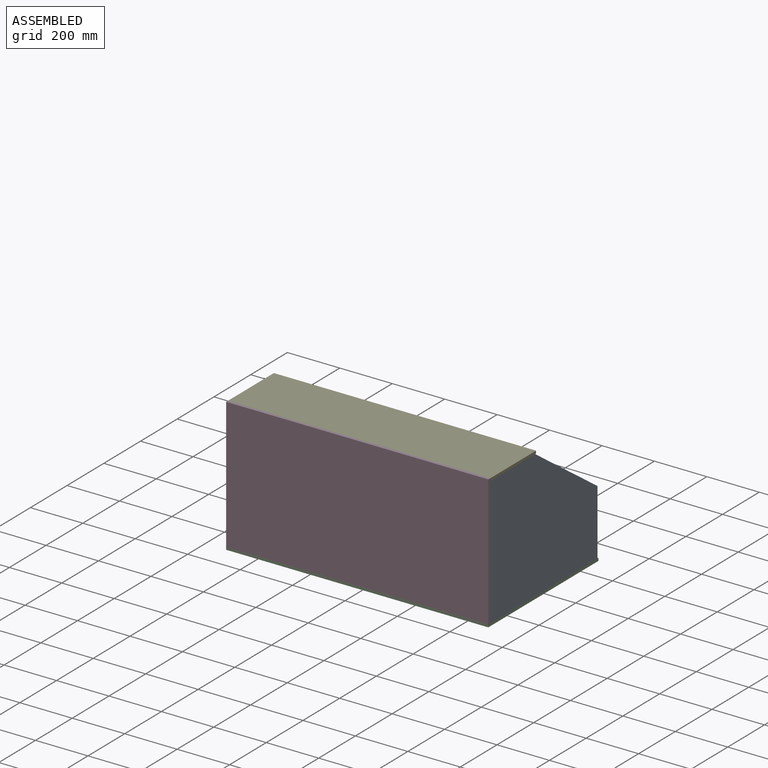
[diagram: assembled view]
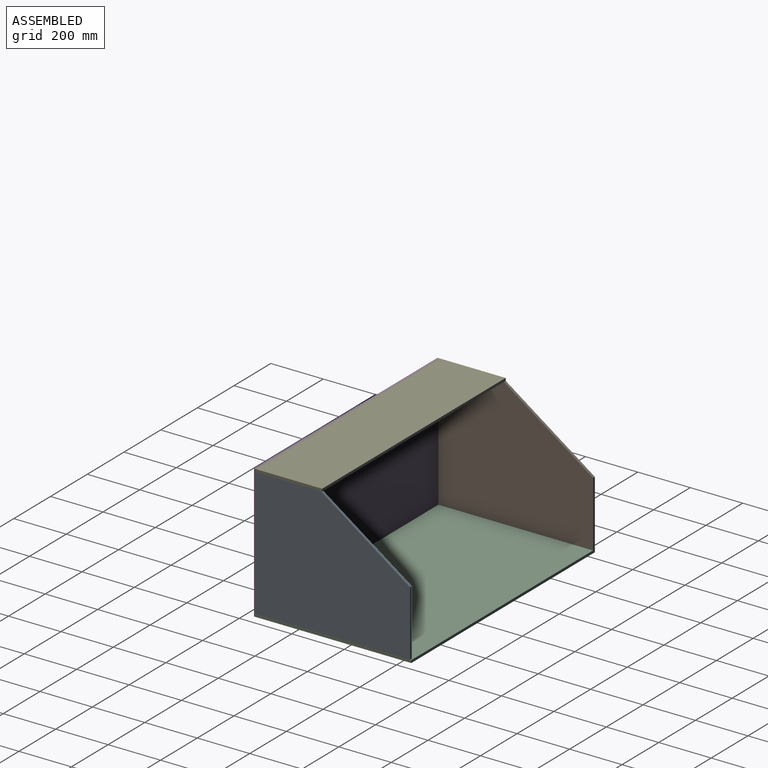
[diagram: assembled view, second angle]
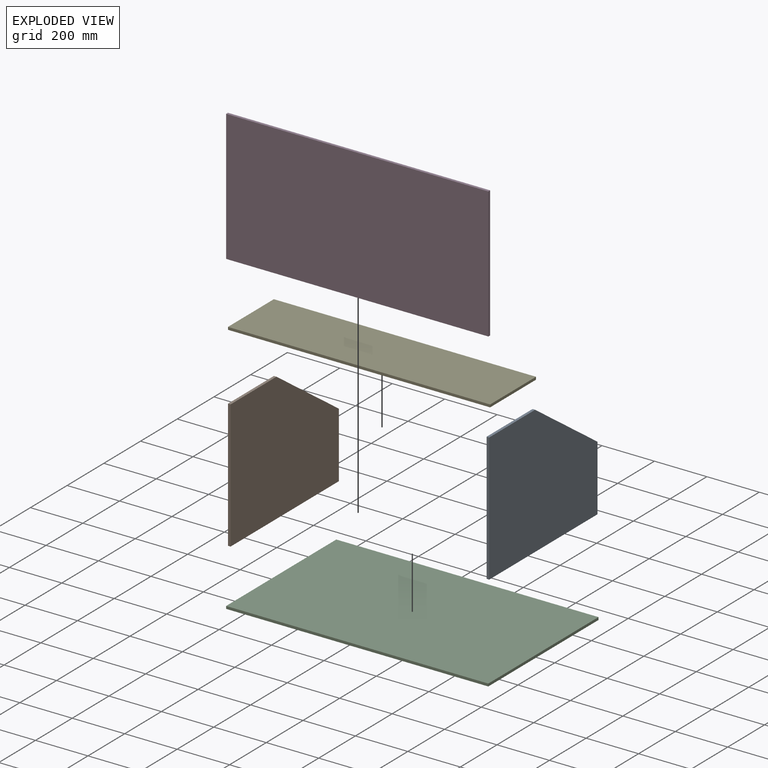
[diagram: exploded view]
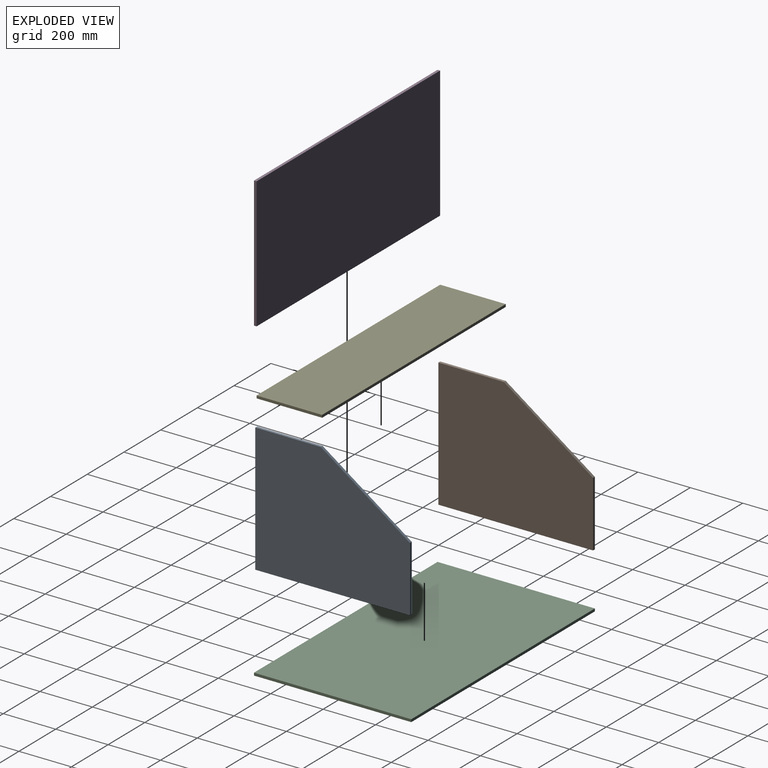
[diagram: exploded view, second angle]
ASSEMBLY  parts=5 mates=4
PART A: 7 faces, bbox 10x590x490 mm
  f0: plane 250x10mm, normal (0,0,1), area 2500mm2, adj f1,f4,f5,f6
  f1: plane 490x10mm, normal (0,-1,0), area 4900mm2, adj f0,f2,f5,f6
  f2: plane 590x10mm, normal (0,0,-1), area 5900mm2, adj f1,f3,f5,f6
  f3: plane 250x10mm, normal (0,1,0), area 2500mm2, adj f2,f4,f5,f6
  f4: plane 340x240mm, normal (0,0.58,0.82), area 4161.7mm2, adj f0,f3,f5,f6
  f5: plane 590x490mm, normal (1,0,0), area 248300mm2, adj f0,f1,f2,f3,f4
  f6: plane 590x490mm, normal (-1,0,0), area 248300mm2, adj f0,f1,f2,f3,f4
PART B: same geometry as A
PART C: 6 faces, bbox 1000x600x10 mm
  f0: plane 1000x10mm, normal (0,1,0), area 10000mm2, adj f1,f3,f4,f5
  f1: plane 600x10mm, normal (-1,0,0), area 6000mm2, adj f0,f2,f4,f5
  f2: plane 1000x10mm, normal (0,-1,0), area 10000mm2, adj f1,f3,f4,f5
  f3: plane 600x10mm, normal (1,0,0), area 6000mm2, adj f0,f2,f4,f5
  f4: plane 1000x600mm, normal (0,0,1), area 600000mm2, adj f0,f1,f2,f3
  f5: plane 1000x600mm, normal (0,0,-1), area 600000mm2, adj f0,f1,f2,f3
PART D: 6 faces, bbox 1000x10x500 mm
  f0: plane 1000x10mm, normal (0,0,1), area 10000mm2, adj f1,f3,f4,f5
  f1: plane 500x10mm, normal (-1,0,0), area 5000mm2, adj f0,f2,f4,f5
  f2: plane 1000x10mm, normal (0,0,-1), area 10000mm2, adj f1,f3,f4,f5
  f3: plane 500x10mm, normal (1,0,0), area 5000mm2, adj f0,f2,f4,f5
  f4: plane 1000x500mm, normal (0,-1,0), area 500000mm2, adj f0,f1,f2,f3
  f5: plane 1000x500mm, normal (0,1,0), area 500000mm2, adj f0,f1,f2,f3
PART E: 6 faces, bbox 1000x250x10 mm
  f0: plane 1000x10mm, normal (0,1,0), area 10000mm2, adj f1,f3,f4,f5
  f1: plane 250x10mm, normal (-1,0,0), area 2500mm2, adj f0,f2,f4,f5
  f2: plane 1000x10mm, normal (0,-1,0), area 10000mm2, adj f1,f3,f4,f5
  f3: plane 250x10mm, normal (1,0,0), area 2500mm2, adj f0,f2,f4,f5
  f4: plane 1000x250mm, normal (0,0,1), area 250000mm2, adj f0,f1,f2,f3
  f5: plane 1000x250mm, normal (0,0,-1), area 250000mm2, adj f0,f1,f2,f3
PLACE A t=(1143.98,-90.87,-73.99)mm
PLACE B t=(153.98,-85.87,-73.99)mm
PLACE C t=(153.98,-95.87,-83.99)mm fixed
PLACE D t=(153.98,-85.87,-73.99)mm
PLACE E t=(153.98,-85.87,416.01)mm
MATE fastened B.f2 <-> C.f4  axis (0,0,-1) through (158.98,209.13,-73.99)mm
MATE fastened D.f2 <-> C.f4  axis (0,0,-1) through (653.98,-90.87,-73.99)mm
MATE fastened A.f2 <-> C.f4  axis (0,0,-1) through (1148.98,204.13,-73.99)mm
MATE fastened E.f2 <-> D.f5  axis (0,-1,0) through (653.98,-85.87,426.01)mm
